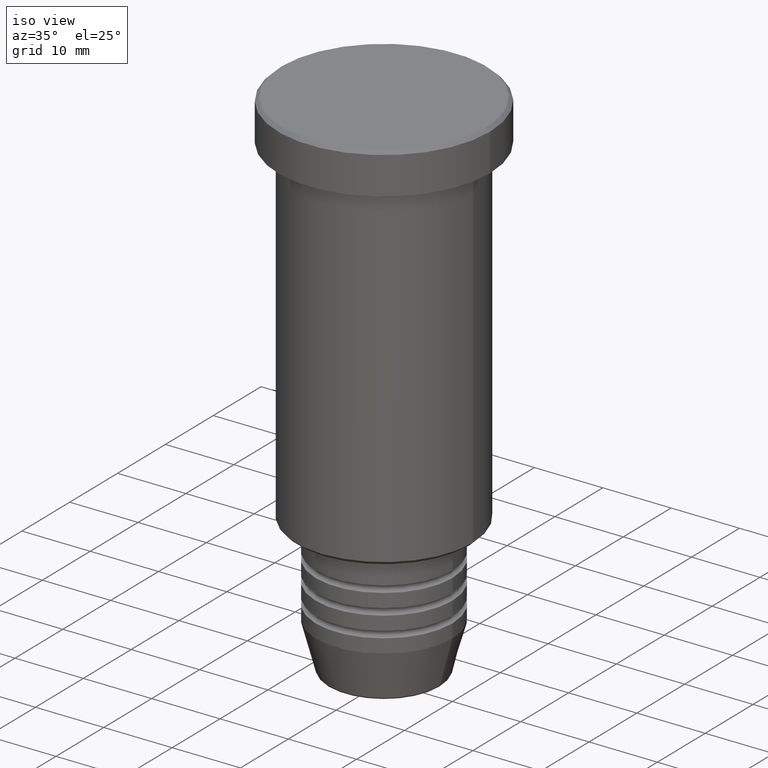
[diagram: clean part render]
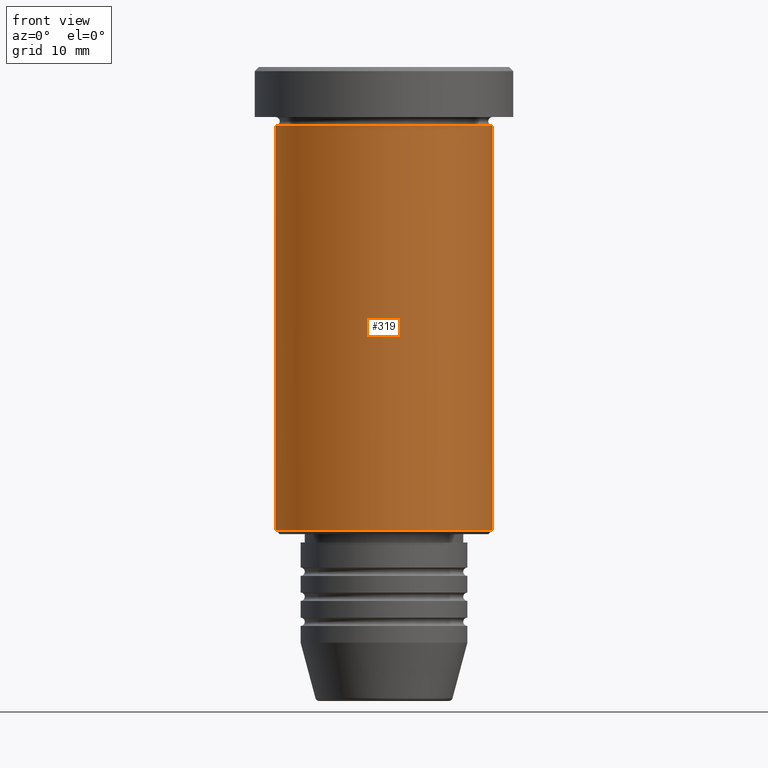
[diagram: tour spotlight — one face highlighted and labeled with its STEP entity id]
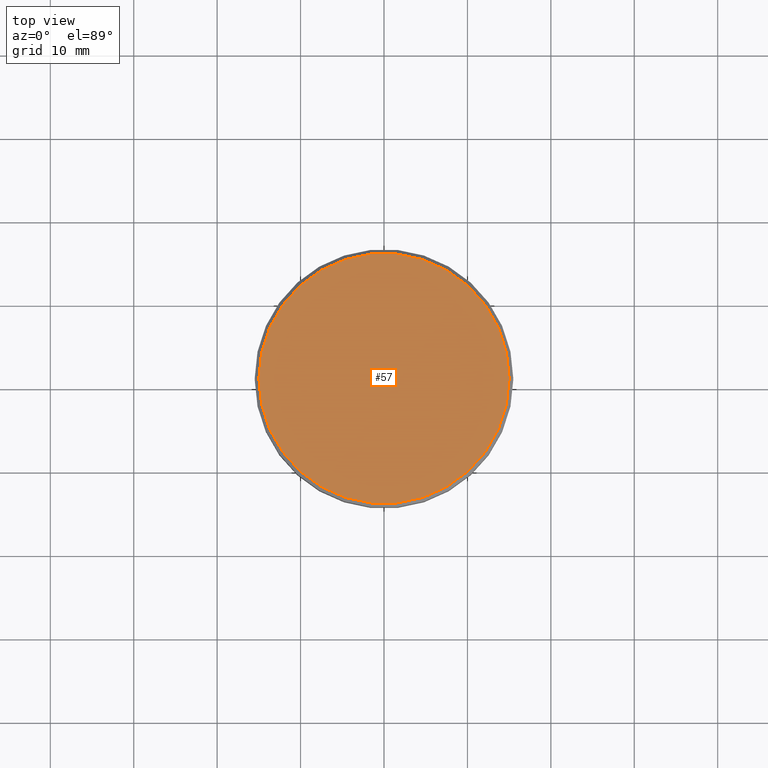
[diagram: tour spotlight — one face highlighted and labeled with its STEP entity id]
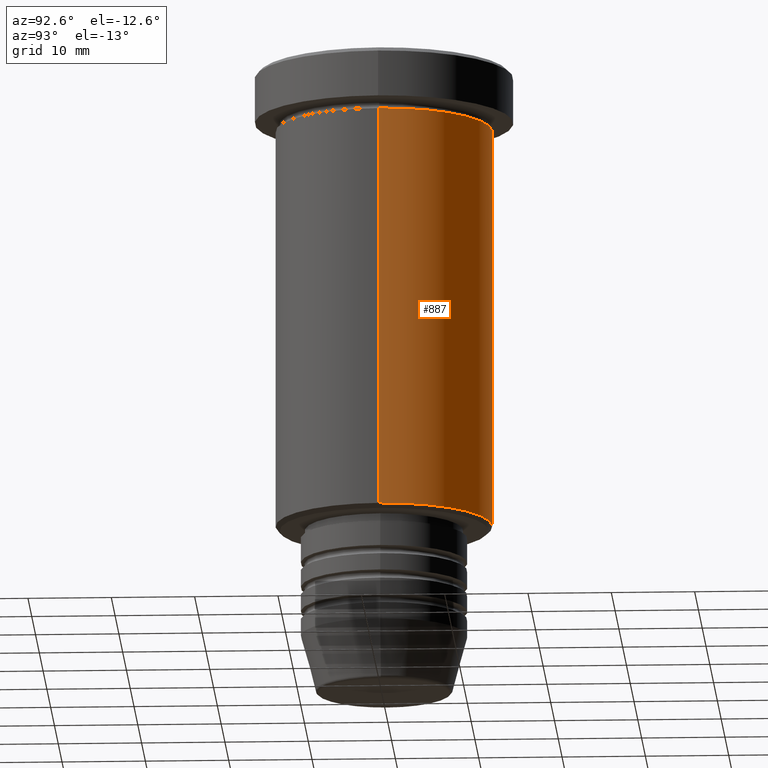
[diagram: tour spotlight — one face highlighted and labeled with its STEP entity id]
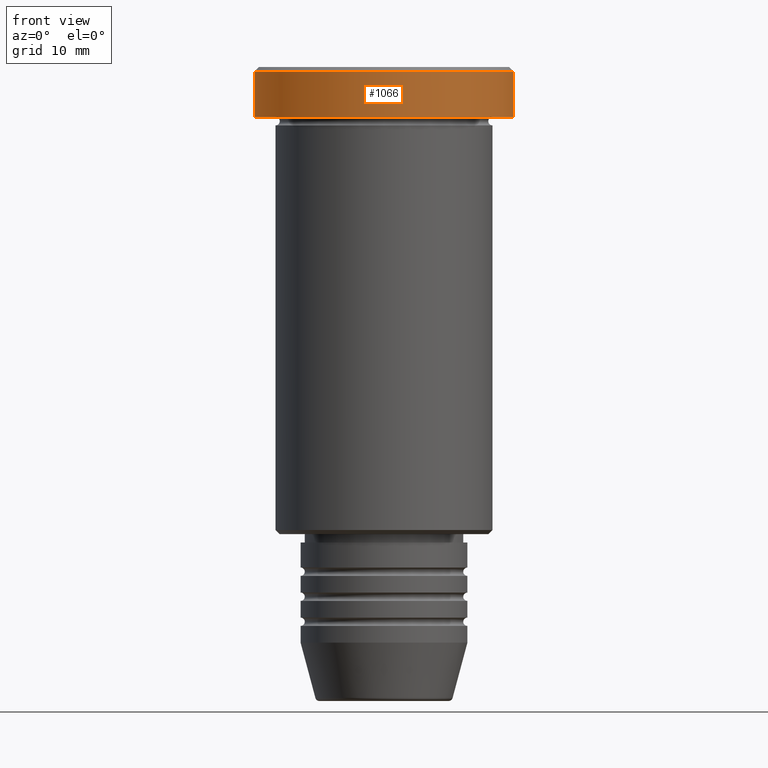
[diagram: tour spotlight — one face highlighted and labeled with its STEP entity id]
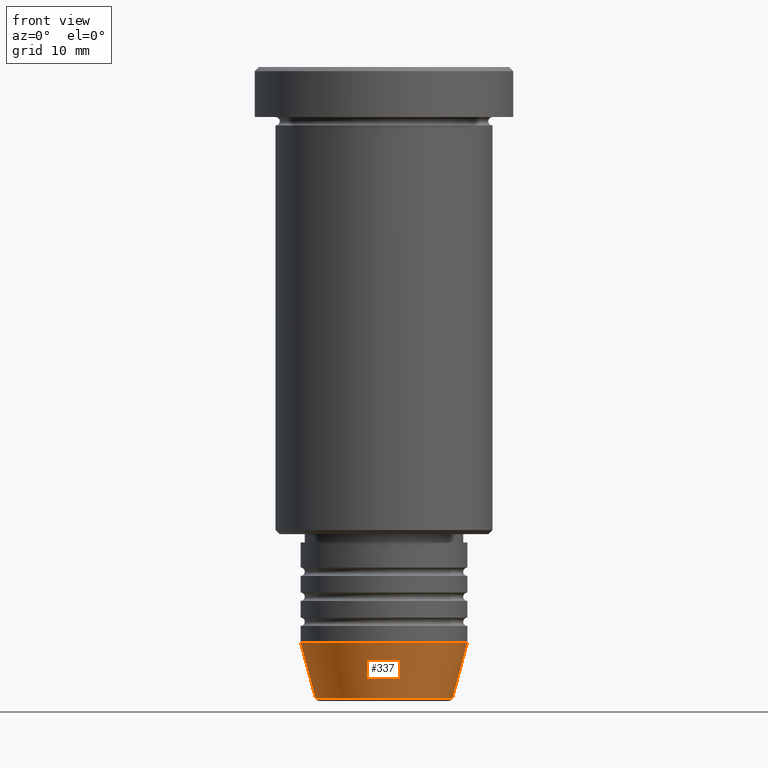
[diagram: tour spotlight — one face highlighted and labeled with its STEP entity id]
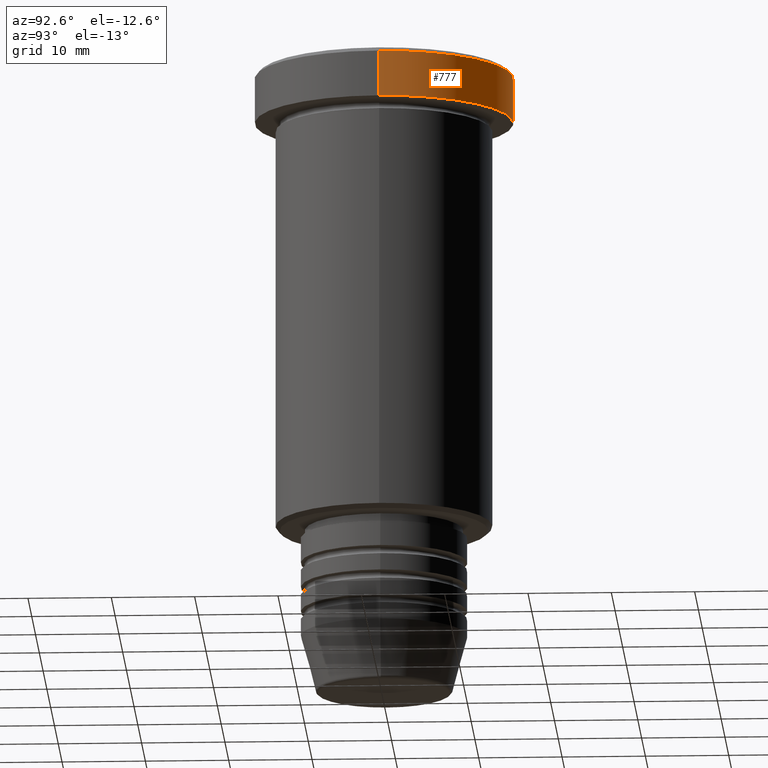
[diagram: tour spotlight — one face highlighted and labeled with its STEP entity id]
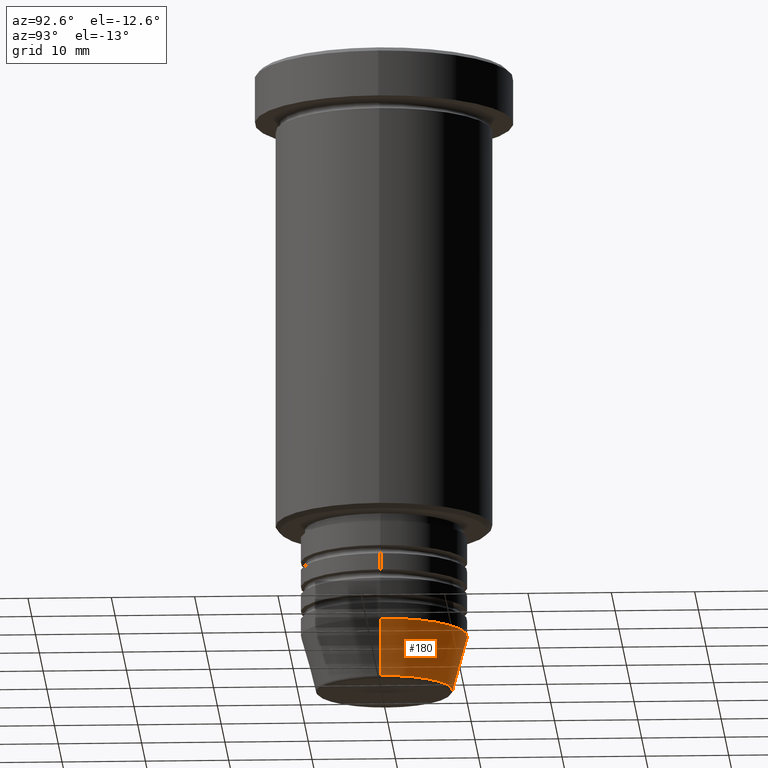
[diagram: tour spotlight — one face highlighted and labeled with its STEP entity id]
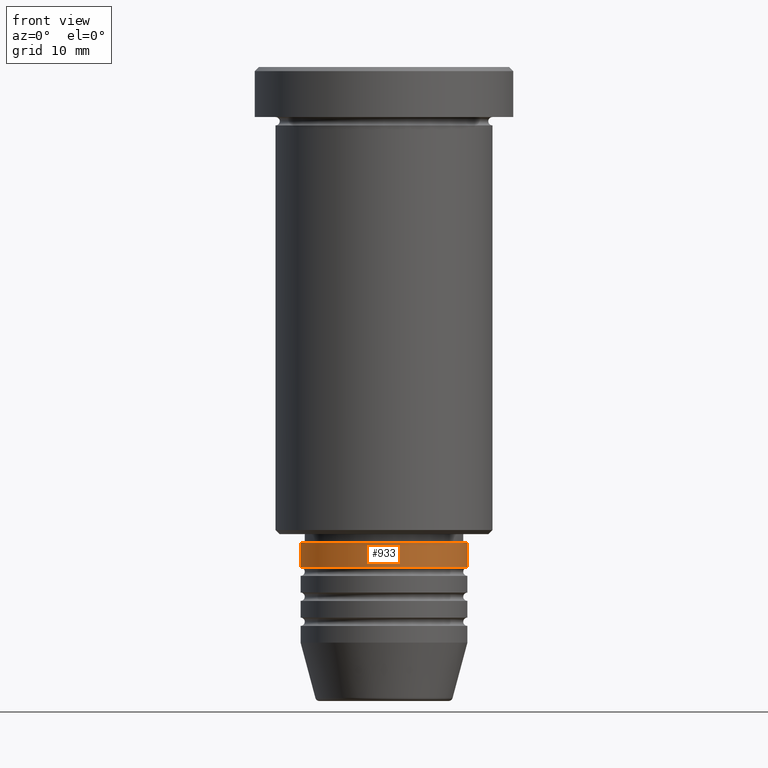
[diagram: tour spotlight — one face highlighted and labeled with its STEP entity id]
A machine part: a face-by-face anatomy tour. The part has 43 B-rep faces; the first image is the clean iso view, then the 8 largest visible faces are spotlighted one at a time (largest first), each with its STEP entity span.

Face 1 — front view, entity #319. In plain terms, the highlighted cylindrical surface (partial cylindrical patch) has radius 13 mm, axis along (-0, -0, 1).
Definition (entity closure, byte-faithful):
#21 = CIRCLE ( 'NONE', #497, 13.00000000000000000 ) ;
#34 = ORIENTED_EDGE ( 'NONE', *, *, #753, .T. ) ;
#105 = EDGE_CURVE ( 'NONE', #923, #739, #626, .T. ) ;
#112 = CARTESIAN_POINT ( 'NONE',  ( 13.00000000000000000, 0.000000000000000000, 0.000000000000000000 ) ) ;
#129 = AXIS2_PLACEMENT_3D ( 'NONE', #882, #1149, #515 ) ;
#185 = DIRECTION ( 'NONE',  ( -0.000000000000000000, -0.000000000000000000, 1.000000000000000000 ) ) ;
#230 = ORIENTED_EDGE ( 'NONE', *, *, #1004, .F. ) ;
#257 = ORIENTED_EDGE ( 'NONE', *, *, #1023, .F. ) ;
#319 = ADVANCED_FACE ( 'NONE', ( #944 ), #487, .T. ) ;
#398 = VECTOR ( 'NONE', #185, 1000.000000000000000 ) ;
#442 = VERTEX_POINT ( 'NONE', #1138 ) ;
#448 = CARTESIAN_POINT ( 'NONE',  ( 0.000000000000000000, 0.000000000000000000, -6.999999999999995559 ) ) ;
#476 = CARTESIAN_POINT ( 'NONE',  ( 0.000000000000000000, 0.000000000000000000, 0.000000000000000000 ) ) ;
#487 = CYLINDRICAL_SURFACE ( 'NONE', #897, 13.00000000000000000 ) ;
#497 = AXIS2_PLACEMENT_3D ( 'NONE', #448, #538, #518 ) ;
#515 = DIRECTION ( 'NONE',  ( -1.000000000000000000, 0.000000000000000000, 0.000000000000000000 ) ) ;
#518 = DIRECTION ( 'NONE',  ( 1.000000000000000000, 0.000000000000000000, 0.000000000000000000 ) ) ;
#538 = DIRECTION ( 'NONE',  ( -0.000000000000000000, -0.000000000000000000, 1.000000000000000000 ) ) ;
#626 = CIRCLE ( 'NONE', #129, 13.00000000000000000 ) ;
#658 = CARTESIAN_POINT ( 'NONE',  ( 13.00000000000000000, 0.000000000000000000, -55.50000000000000711 ) ) ;
#685 = CARTESIAN_POINT ( 'NONE',  ( -13.00000000000000000, 1.592040838891559095E-15, 0.000000000000000000 ) ) ;
#701 = EDGE_LOOP ( 'NONE', ( #230, #1092, #34, #257 ) ) ;
#739 = VERTEX_POINT ( 'NONE', #658 ) ;
#741 = LINE ( 'NONE', #112, #398 ) ;
#753 = EDGE_CURVE ( 'NONE', #739, #1106, #741, .T. ) ;
#837 = DIRECTION ( 'NONE',  ( 1.000000000000000000, 0.000000000000000000, 0.000000000000000000 ) ) ;
#878 = CARTESIAN_POINT ( 'NONE',  ( -13.00000000000000000, 1.592040838891559095E-15, -55.50000000000000711 ) ) ;
#882 = CARTESIAN_POINT ( 'NONE',  ( 0.000000000000000000, 0.000000000000000000, -55.50000000000000711 ) ) ;
#897 = AXIS2_PLACEMENT_3D ( 'NONE', #476, #1021, #837 ) ;
#923 = VERTEX_POINT ( 'NONE', #878 ) ;
#944 = FACE_OUTER_BOUND ( 'NONE', #701, .T. ) ;
#981 = CARTESIAN_POINT ( 'NONE',  ( 13.00000000000000000, 0.000000000000000000, -6.999999999999995559 ) ) ;
#1004 = EDGE_CURVE ( 'NONE', #923, #442, #1137, .T. ) ;
#1021 = DIRECTION ( 'NONE',  ( -0.000000000000000000, -0.000000000000000000, 1.000000000000000000 ) ) ;
#1023 = EDGE_CURVE ( 'NONE', #442, #1106, #21, .T. ) ;
#1045 = VECTOR ( 'NONE', #1048, 1000.000000000000000 ) ;
#1048 = DIRECTION ( 'NONE',  ( -0.000000000000000000, -0.000000000000000000, 1.000000000000000000 ) ) ;
#1092 = ORIENTED_EDGE ( 'NONE', *, *, #105, .T. ) ;
#1106 = VERTEX_POINT ( 'NONE', #981 ) ;
#1137 = LINE ( 'NONE', #685, #1045 ) ;
#1138 = CARTESIAN_POINT ( 'NONE',  ( -13.00000000000000000, 1.592040838891559095E-15, -6.999999999999995559 ) ) ;
#1149 = DIRECTION ( 'NONE',  ( -0.000000000000000000, -0.000000000000000000, 1.000000000000000000 ) ) ;

Face 2 — top view, entity #57. In plain terms, the highlighted planar face has unit normal (0, -0, 1).
Definition (entity closure, byte-faithful):
#18 = AXIS2_PLACEMENT_3D ( 'NONE', #535, #1085, #455 ) ;
#57 = ADVANCED_FACE ( 'NONE', ( #160 ), #960, .T. ) ;
#61 = VERTEX_POINT ( 'NONE', #1136 ) ;
#107 = EDGE_LOOP ( 'NONE', ( #336, #1057 ) ) ;
#113 = AXIS2_PLACEMENT_3D ( 'NONE', #1148, #967, #769 ) ;
#160 = FACE_OUTER_BOUND ( 'NONE', #107, .T. ) ;
#220 = EDGE_CURVE ( 'NONE', #61, #609, #356, .T. ) ;
#336 = ORIENTED_EDGE ( 'NONE', *, *, #220, .T. ) ;
#356 = CIRCLE ( 'NONE', #18, 15.00000000000001421 ) ;
#455 = DIRECTION ( 'NONE',  ( 1.000000000000000000, 0.000000000000000000, 0.000000000000000000 ) ) ;
#483 = EDGE_CURVE ( 'NONE', #609, #61, #704, .T. ) ;
#521 = CARTESIAN_POINT ( 'NONE',  ( 0.000000000000000000, 0.000000000000000000, 0.000000000000000000 ) ) ;
#535 = CARTESIAN_POINT ( 'NONE',  ( 0.000000000000000000, 0.000000000000000000, 0.000000000000000000 ) ) ;
#609 = VERTEX_POINT ( 'NONE', #705 ) ;
#704 = CIRCLE ( 'NONE', #113, 15.00000000000001421 ) ;
#705 = CARTESIAN_POINT ( 'NONE',  ( 15.00000000000001421, 1.867586368699714559E-15, 0.000000000000000000 ) ) ;
#769 = DIRECTION ( 'NONE',  ( 1.000000000000000000, 0.000000000000000000, 0.000000000000000000 ) ) ;
#770 = DIRECTION ( 'NONE',  ( 0.000000000000000000, -0.000000000000000000, 1.000000000000000000 ) ) ;
#960 = PLANE ( 'NONE',  #1061 ) ;
#967 = DIRECTION ( 'NONE',  ( -0.000000000000000000, -0.000000000000000000, 1.000000000000000000 ) ) ;
#1052 = DIRECTION ( 'NONE',  ( 1.000000000000000000, 0.000000000000000000, 0.000000000000000000 ) ) ;
#1057 = ORIENTED_EDGE ( 'NONE', *, *, #483, .T. ) ;
#1061 = AXIS2_PLACEMENT_3D ( 'NONE', #521, #770, #1052 ) ;
#1085 = DIRECTION ( 'NONE',  ( -0.000000000000000000, -0.000000000000000000, 1.000000000000000000 ) ) ;
#1136 = CARTESIAN_POINT ( 'NONE',  ( -15.00000000000001421, 0.000000000000000000, 0.000000000000000000 ) ) ;
#1148 = CARTESIAN_POINT ( 'NONE',  ( 0.000000000000000000, 0.000000000000000000, 0.000000000000000000 ) ) ;

Face 3 — auxiliary view, entity #887. In plain terms, the highlighted cylindrical surface (partial cylindrical patch) has radius 13 mm, axis along (-0, -0, 1).
Definition (entity closure, byte-faithful):
#35 = AXIS2_PLACEMENT_3D ( 'NONE', #936, #482, #95 ) ;
#95 = DIRECTION ( 'NONE',  ( 1.000000000000000000, 0.000000000000000000, 0.000000000000000000 ) ) ;
#112 = CARTESIAN_POINT ( 'NONE',  ( 13.00000000000000000, 0.000000000000000000, 0.000000000000000000 ) ) ;
#144 = EDGE_CURVE ( 'NONE', #739, #923, #223, .T. ) ;
#158 = ORIENTED_EDGE ( 'NONE', *, *, #352, .F. ) ;
#164 = DIRECTION ( 'NONE',  ( -0.000000000000000000, -0.000000000000000000, 1.000000000000000000 ) ) ;
#169 = CARTESIAN_POINT ( 'NONE',  ( 0.000000000000000000, 0.000000000000000000, -55.50000000000000711 ) ) ;
#185 = DIRECTION ( 'NONE',  ( -0.000000000000000000, -0.000000000000000000, 1.000000000000000000 ) ) ;
#223 = CIRCLE ( 'NONE', #935, 13.00000000000000000 ) ;
#238 = CARTESIAN_POINT ( 'NONE',  ( 0.000000000000000000, 0.000000000000000000, 0.000000000000000000 ) ) ;
#273 = EDGE_LOOP ( 'NONE', ( #539, #1018, #158, #392 ) ) ;
#352 = EDGE_CURVE ( 'NONE', #1106, #442, #838, .T. ) ;
#392 = ORIENTED_EDGE ( 'NONE', *, *, #753, .F. ) ;
#398 = VECTOR ( 'NONE', #185, 1000.000000000000000 ) ;
#399 = DIRECTION ( 'NONE',  ( 1.000000000000000000, 0.000000000000000000, 0.000000000000000000 ) ) ;
#442 = VERTEX_POINT ( 'NONE', #1138 ) ;
#482 = DIRECTION ( 'NONE',  ( -0.000000000000000000, -0.000000000000000000, 1.000000000000000000 ) ) ;
#539 = ORIENTED_EDGE ( 'NONE', *, *, #144, .T. ) ;
#579 = CYLINDRICAL_SURFACE ( 'NONE', #591, 13.00000000000000000 ) ;
#591 = AXIS2_PLACEMENT_3D ( 'NONE', #238, #691, #399 ) ;
#658 = CARTESIAN_POINT ( 'NONE',  ( 13.00000000000000000, 0.000000000000000000, -55.50000000000000711 ) ) ;
#685 = CARTESIAN_POINT ( 'NONE',  ( -13.00000000000000000, 1.592040838891559095E-15, 0.000000000000000000 ) ) ;
#691 = DIRECTION ( 'NONE',  ( -0.000000000000000000, -0.000000000000000000, 1.000000000000000000 ) ) ;
#739 = VERTEX_POINT ( 'NONE', #658 ) ;
#741 = LINE ( 'NONE', #112, #398 ) ;
#753 = EDGE_CURVE ( 'NONE', #739, #1106, #741, .T. ) ;
#772 = FACE_OUTER_BOUND ( 'NONE', #273, .T. ) ;
#838 = CIRCLE ( 'NONE', #35, 13.00000000000000000 ) ;
#878 = CARTESIAN_POINT ( 'NONE',  ( -13.00000000000000000, 1.592040838891559095E-15, -55.50000000000000711 ) ) ;
#887 = ADVANCED_FACE ( 'NONE', ( #772 ), #579, .T. ) ;
#914 = DIRECTION ( 'NONE',  ( -1.000000000000000000, 0.000000000000000000, 0.000000000000000000 ) ) ;
#923 = VERTEX_POINT ( 'NONE', #878 ) ;
#935 = AXIS2_PLACEMENT_3D ( 'NONE', #169, #164, #914 ) ;
#936 = CARTESIAN_POINT ( 'NONE',  ( 0.000000000000000000, 0.000000000000000000, -6.999999999999995559 ) ) ;
#981 = CARTESIAN_POINT ( 'NONE',  ( 13.00000000000000000, 0.000000000000000000, -6.999999999999995559 ) ) ;
#1004 = EDGE_CURVE ( 'NONE', #923, #442, #1137, .T. ) ;
#1018 = ORIENTED_EDGE ( 'NONE', *, *, #1004, .T. ) ;
#1045 = VECTOR ( 'NONE', #1048, 1000.000000000000000 ) ;
#1048 = DIRECTION ( 'NONE',  ( -0.000000000000000000, -0.000000000000000000, 1.000000000000000000 ) ) ;
#1106 = VERTEX_POINT ( 'NONE', #981 ) ;
#1137 = LINE ( 'NONE', #685, #1045 ) ;
#1138 = CARTESIAN_POINT ( 'NONE',  ( -13.00000000000000000, 1.592040838891559095E-15, -6.999999999999995559 ) ) ;

Face 4 — front view, entity #1066. In plain terms, the highlighted cylindrical surface (partial cylindrical patch) has radius 15.5 mm, axis along (-0, -0, 1).
Definition (entity closure, byte-faithful):
#7 = EDGE_CURVE ( 'NONE', #547, #561, #678, .T. ) ;
#22 = VECTOR ( 'NONE', #408, 1000.000000000000000 ) ;
#32 = ORIENTED_EDGE ( 'NONE', *, *, #730, .T. ) ;
#55 = VECTOR ( 'NONE', #773, 1000.000000000000000 ) ;
#87 = CARTESIAN_POINT ( 'NONE',  ( -15.50000000000000000, 1.898202538678397557E-15, -0.4999999999999987232 ) ) ;
#127 = ORIENTED_EDGE ( 'NONE', *, *, #400, .T. ) ;
#143 = CARTESIAN_POINT ( 'NONE',  ( 0.000000000000000000, 0.000000000000000000, -0.4999999999999987232 ) ) ;
#194 = DIRECTION ( 'NONE',  ( 1.000000000000000000, 0.000000000000000000, 0.000000000000000000 ) ) ;
#331 = DIRECTION ( 'NONE',  ( 1.000000000000000000, 0.000000000000000000, 0.000000000000000000 ) ) ;
#348 = ORIENTED_EDGE ( 'NONE', *, *, #1012, .T. ) ;
#387 = CARTESIAN_POINT ( 'NONE',  ( 0.000000000000000000, 0.000000000000000000, -5.999999999999995559 ) ) ;
#400 = EDGE_CURVE ( 'NONE', #682, #451, #1056, .T. ) ;
#408 = DIRECTION ( 'NONE',  ( -0.000000000000000000, -0.000000000000000000, 1.000000000000000000 ) ) ;
#424 = CARTESIAN_POINT ( 'NONE',  ( 15.50000000000000000, 0.000000000000000000, -0.4999999999999987232 ) ) ;
#436 = CARTESIAN_POINT ( 'NONE',  ( 15.50000000000000000, 0.000000000000000000, -5.999999999999995559 ) ) ;
#451 = VERTEX_POINT ( 'NONE', #424 ) ;
#523 = FACE_OUTER_BOUND ( 'NONE', #886, .T. ) ;
#547 = VERTEX_POINT ( 'NONE', #901 ) ;
#550 = DIRECTION ( 'NONE',  ( -0.000000000000000000, -0.000000000000000000, 1.000000000000000000 ) ) ;
#561 = VERTEX_POINT ( 'NONE', #87 ) ;
#604 = CARTESIAN_POINT ( 'NONE',  ( -15.50000000000000000, 1.898202538678397557E-15, 0.000000000000000000 ) ) ;
#621 = CARTESIAN_POINT ( 'NONE',  ( 0.000000000000000000, 0.000000000000000000, 0.000000000000000000 ) ) ;
#678 = LINE ( 'NONE', #604, #22 ) ;
#682 = VERTEX_POINT ( 'NONE', #436 ) ;
#686 = CIRCLE ( 'NONE', #725, 15.50000000000000000 ) ;
#698 = DIRECTION ( 'NONE',  ( -0.000000000000000000, -0.000000000000000000, 1.000000000000000000 ) ) ;
#722 = AXIS2_PLACEMENT_3D ( 'NONE', #387, #550, #194 ) ;
#725 = AXIS2_PLACEMENT_3D ( 'NONE', #143, #870, #331 ) ;
#730 = EDGE_CURVE ( 'NONE', #547, #682, #1143, .T. ) ;
#773 = DIRECTION ( 'NONE',  ( -0.000000000000000000, -0.000000000000000000, 1.000000000000000000 ) ) ;
#781 = AXIS2_PLACEMENT_3D ( 'NONE', #621, #698, #1080 ) ;
#806 = CYLINDRICAL_SURFACE ( 'NONE', #781, 15.50000000000000000 ) ;
#870 = DIRECTION ( 'NONE',  ( 0.000000000000000000, 0.000000000000000000, -1.000000000000000000 ) ) ;
#886 = EDGE_LOOP ( 'NONE', ( #1037, #32, #127, #348 ) ) ;
#901 = CARTESIAN_POINT ( 'NONE',  ( -15.50000000000000000, 1.898202538678397557E-15, -5.999999999999995559 ) ) ;
#1012 = EDGE_CURVE ( 'NONE', #451, #561, #686, .T. ) ;
#1037 = ORIENTED_EDGE ( 'NONE', *, *, #7, .F. ) ;
#1056 = LINE ( 'NONE', #1152, #55 ) ;
#1066 = ADVANCED_FACE ( 'NONE', ( #523 ), #806, .T. ) ;
#1080 = DIRECTION ( 'NONE',  ( 1.000000000000000000, 0.000000000000000000, 0.000000000000000000 ) ) ;
#1143 = CIRCLE ( 'NONE', #722, 15.50000000000000000 ) ;
#1152 = CARTESIAN_POINT ( 'NONE',  ( 15.50000000000000000, 0.000000000000000000, 0.000000000000000000 ) ) ;

Face 5 — front view, entity #337. In plain terms, the highlighted conical surface has half-angle 15 deg.
Definition (entity closure, byte-faithful):
#23 = DIRECTION ( 'NONE',  ( -0.000000000000000000, -0.000000000000000000, 1.000000000000000000 ) ) ;
#73 = CARTESIAN_POINT ( 'NONE',  ( 0.000000000000000000, 0.000000000000000000, -69.00000000000000000 ) ) ;
#116 = VERTEX_POINT ( 'NONE', #181 ) ;
#124 = DIRECTION ( 'NONE',  ( -0.000000000000000000, -0.000000000000000000, 1.000000000000000000 ) ) ;
#132 = DIRECTION ( 'NONE',  ( 0.2588190451025213501, 0.000000000000000000, 0.9659258262890680902 ) ) ;
#145 = CARTESIAN_POINT ( 'NONE',  ( 8.223655072137187716, 0.000000000000000000, -75.62940952255127058 ) ) ;
#162 = CARTESIAN_POINT ( 'NONE',  ( -10.00000000000000000, 1.224646799147353256E-15, -69.00000000000000000 ) ) ;
#171 = CONICAL_SURFACE ( 'NONE', #552, 10.00000000000000000, 0.2617993877991500740 ) ;
#181 = CARTESIAN_POINT ( 'NONE',  ( 10.00000000000000000, 0.000000000000000000, -69.00000000000000000 ) ) ;
#205 = DIRECTION ( 'NONE',  ( 1.000000000000000000, 0.000000000000000000, 0.000000000000000000 ) ) ;
#209 = AXIS2_PLACEMENT_3D ( 'NONE', #221, #124, #491 ) ;
#210 = CARTESIAN_POINT ( 'NONE',  ( -10.00000000000000000, 1.224646799147353256E-15, -69.00000000000000000 ) ) ;
#221 = CARTESIAN_POINT ( 'NONE',  ( 0.000000000000000000, 0.000000000000000000, -75.62940952255127058 ) ) ;
#267 = AXIS2_PLACEMENT_3D ( 'NONE', #73, #1090, #794 ) ;
#337 = ADVANCED_FACE ( 'NONE', ( #850 ), #171, .T. ) ;
#346 = CARTESIAN_POINT ( 'NONE',  ( -8.223655072137187716, 1.115877042642911856E-15, -75.62940952255127058 ) ) ;
#393 = CARTESIAN_POINT ( 'NONE',  ( 0.000000000000000000, 0.000000000000000000, -69.00000000000000000 ) ) ;
#397 = VECTOR ( 'NONE', #132, 1000.000000000000000 ) ;
#407 = EDGE_CURVE ( 'NONE', #528, #116, #854, .T. ) ;
#415 = ORIENTED_EDGE ( 'NONE', *, *, #601, .F. ) ;
#421 = ORIENTED_EDGE ( 'NONE', *, *, #407, .T. ) ;
#491 = DIRECTION ( 'NONE',  ( 1.000000000000000000, 0.000000000000000000, 0.000000000000000000 ) ) ;
#509 = EDGE_CURVE ( 'NONE', #599, #528, #1181, .T. ) ;
#528 = VERTEX_POINT ( 'NONE', #145 ) ;
#552 = AXIS2_PLACEMENT_3D ( 'NONE', #393, #23, #205 ) ;
#565 = EDGE_LOOP ( 'NONE', ( #890, #1093, #421, #415 ) ) ;
#599 = VERTEX_POINT ( 'NONE', #346 ) ;
#601 = EDGE_CURVE ( 'NONE', #1049, #116, #938, .T. ) ;
#661 = LINE ( 'NONE', #210, #971 ) ;
#694 = CARTESIAN_POINT ( 'NONE',  ( 10.00000000000000000, 0.000000000000000000, -69.00000000000000000 ) ) ;
#794 = DIRECTION ( 'NONE',  ( 1.000000000000000000, 0.000000000000000000, 0.000000000000000000 ) ) ;
#828 = EDGE_CURVE ( 'NONE', #599, #1049, #661, .T. ) ;
#829 = DIRECTION ( 'NONE',  ( -0.2588190451025213501, 3.169619151431772337E-17, 0.9659258262890680902 ) ) ;
#850 = FACE_OUTER_BOUND ( 'NONE', #565, .T. ) ;
#854 = LINE ( 'NONE', #694, #397 ) ;
#890 = ORIENTED_EDGE ( 'NONE', *, *, #828, .F. ) ;
#938 = CIRCLE ( 'NONE', #267, 10.00000000000000000 ) ;
#971 = VECTOR ( 'NONE', #829, 1000.000000000000000 ) ;
#1049 = VERTEX_POINT ( 'NONE', #162 ) ;
#1090 = DIRECTION ( 'NONE',  ( -0.000000000000000000, -0.000000000000000000, 1.000000000000000000 ) ) ;
#1093 = ORIENTED_EDGE ( 'NONE', *, *, #509, .T. ) ;
#1181 = CIRCLE ( 'NONE', #209, 8.223655072137187716 ) ;

Face 6 — auxiliary view, entity #777. In plain terms, the highlighted cylindrical surface (partial cylindrical patch) has radius 15.5 mm, axis along (-0, -0, 1).
Definition (entity closure, byte-faithful):
#7 = EDGE_CURVE ( 'NONE', #547, #561, #678, .T. ) ;
#8 = DIRECTION ( 'NONE',  ( 1.000000000000000000, 0.000000000000000000, 0.000000000000000000 ) ) ;
#22 = VECTOR ( 'NONE', #408, 1000.000000000000000 ) ;
#50 = DIRECTION ( 'NONE',  ( -0.000000000000000000, -0.000000000000000000, 1.000000000000000000 ) ) ;
#55 = VECTOR ( 'NONE', #773, 1000.000000000000000 ) ;
#87 = CARTESIAN_POINT ( 'NONE',  ( -15.50000000000000000, 1.898202538678397557E-15, -0.4999999999999987232 ) ) ;
#98 = ORIENTED_EDGE ( 'NONE', *, *, #426, .T. ) ;
#139 = DIRECTION ( 'NONE',  ( 1.000000000000000000, 0.000000000000000000, 0.000000000000000000 ) ) ;
#211 = AXIS2_PLACEMENT_3D ( 'NONE', #913, #721, #801 ) ;
#289 = AXIS2_PLACEMENT_3D ( 'NONE', #1036, #50, #139 ) ;
#357 = CIRCLE ( 'NONE', #211, 15.50000000000000000 ) ;
#400 = EDGE_CURVE ( 'NONE', #682, #451, #1056, .T. ) ;
#408 = DIRECTION ( 'NONE',  ( -0.000000000000000000, -0.000000000000000000, 1.000000000000000000 ) ) ;
#424 = CARTESIAN_POINT ( 'NONE',  ( 15.50000000000000000, 0.000000000000000000, -0.4999999999999987232 ) ) ;
#426 = EDGE_CURVE ( 'NONE', #682, #547, #1058, .T. ) ;
#436 = CARTESIAN_POINT ( 'NONE',  ( 15.50000000000000000, 0.000000000000000000, -5.999999999999995559 ) ) ;
#451 = VERTEX_POINT ( 'NONE', #424 ) ;
#547 = VERTEX_POINT ( 'NONE', #901 ) ;
#561 = VERTEX_POINT ( 'NONE', #87 ) ;
#575 = FACE_OUTER_BOUND ( 'NONE', #761, .T. ) ;
#589 = AXIS2_PLACEMENT_3D ( 'NONE', #824, #737, #8 ) ;
#604 = CARTESIAN_POINT ( 'NONE',  ( -15.50000000000000000, 1.898202538678397557E-15, 0.000000000000000000 ) ) ;
#678 = LINE ( 'NONE', #604, #22 ) ;
#682 = VERTEX_POINT ( 'NONE', #436 ) ;
#690 = EDGE_CURVE ( 'NONE', #561, #451, #357, .T. ) ;
#721 = DIRECTION ( 'NONE',  ( 0.000000000000000000, 0.000000000000000000, -1.000000000000000000 ) ) ;
#734 = ORIENTED_EDGE ( 'NONE', *, *, #400, .F. ) ;
#737 = DIRECTION ( 'NONE',  ( -0.000000000000000000, -0.000000000000000000, 1.000000000000000000 ) ) ;
#761 = EDGE_LOOP ( 'NONE', ( #98, #786, #931, #734 ) ) ;
#773 = DIRECTION ( 'NONE',  ( -0.000000000000000000, -0.000000000000000000, 1.000000000000000000 ) ) ;
#777 = ADVANCED_FACE ( 'NONE', ( #575 ), #929, .T. ) ;
#786 = ORIENTED_EDGE ( 'NONE', *, *, #7, .T. ) ;
#801 = DIRECTION ( 'NONE',  ( 1.000000000000000000, 0.000000000000000000, 0.000000000000000000 ) ) ;
#824 = CARTESIAN_POINT ( 'NONE',  ( 0.000000000000000000, 0.000000000000000000, 0.000000000000000000 ) ) ;
#901 = CARTESIAN_POINT ( 'NONE',  ( -15.50000000000000000, 1.898202538678397557E-15, -5.999999999999995559 ) ) ;
#913 = CARTESIAN_POINT ( 'NONE',  ( 0.000000000000000000, 0.000000000000000000, -0.4999999999999987232 ) ) ;
#929 = CYLINDRICAL_SURFACE ( 'NONE', #589, 15.50000000000000000 ) ;
#931 = ORIENTED_EDGE ( 'NONE', *, *, #690, .T. ) ;
#1036 = CARTESIAN_POINT ( 'NONE',  ( 0.000000000000000000, 0.000000000000000000, -5.999999999999995559 ) ) ;
#1056 = LINE ( 'NONE', #1152, #55 ) ;
#1058 = CIRCLE ( 'NONE', #289, 15.50000000000000000 ) ;
#1152 = CARTESIAN_POINT ( 'NONE',  ( 15.50000000000000000, 0.000000000000000000, 0.000000000000000000 ) ) ;

Face 7 — auxiliary view, entity #180. In plain terms, the highlighted conical surface has half-angle 15 deg.
Definition (entity closure, byte-faithful):
#17 = AXIS2_PLACEMENT_3D ( 'NONE', #438, #1091, #980 ) ;
#31 = CARTESIAN_POINT ( 'NONE',  ( 0.000000000000000000, 0.000000000000000000, -69.00000000000000000 ) ) ;
#111 = CONICAL_SURFACE ( 'NONE', #1141, 10.00000000000000000, 0.2617993877991500740 ) ;
#116 = VERTEX_POINT ( 'NONE', #181 ) ;
#132 = DIRECTION ( 'NONE',  ( 0.2588190451025213501, 0.000000000000000000, 0.9659258262890680902 ) ) ;
#145 = CARTESIAN_POINT ( 'NONE',  ( 8.223655072137187716, 0.000000000000000000, -75.62940952255127058 ) ) ;
#157 = EDGE_CURVE ( 'NONE', #528, #599, #836, .T. ) ;
#162 = CARTESIAN_POINT ( 'NONE',  ( -10.00000000000000000, 1.224646799147353256E-15, -69.00000000000000000 ) ) ;
#180 = ADVANCED_FACE ( 'NONE', ( #1174 ), #111, .T. ) ;
#181 = CARTESIAN_POINT ( 'NONE',  ( 10.00000000000000000, 0.000000000000000000, -69.00000000000000000 ) ) ;
#210 = CARTESIAN_POINT ( 'NONE',  ( -10.00000000000000000, 1.224646799147353256E-15, -69.00000000000000000 ) ) ;
#277 = ORIENTED_EDGE ( 'NONE', *, *, #307, .F. ) ;
#284 = DIRECTION ( 'NONE',  ( -0.000000000000000000, -0.000000000000000000, 1.000000000000000000 ) ) ;
#307 = EDGE_CURVE ( 'NONE', #116, #1049, #937, .T. ) ;
#346 = CARTESIAN_POINT ( 'NONE',  ( -8.223655072137187716, 1.115877042642911856E-15, -75.62940952255127058 ) ) ;
#347 = DIRECTION ( 'NONE',  ( 1.000000000000000000, 0.000000000000000000, 0.000000000000000000 ) ) ;
#371 = ORIENTED_EDGE ( 'NONE', *, *, #828, .T. ) ;
#386 = ORIENTED_EDGE ( 'NONE', *, *, #157, .T. ) ;
#397 = VECTOR ( 'NONE', #132, 1000.000000000000000 ) ;
#407 = EDGE_CURVE ( 'NONE', #528, #116, #854, .T. ) ;
#428 = ORIENTED_EDGE ( 'NONE', *, *, #407, .F. ) ;
#438 = CARTESIAN_POINT ( 'NONE',  ( 0.000000000000000000, 0.000000000000000000, -75.62940952255127058 ) ) ;
#528 = VERTEX_POINT ( 'NONE', #145 ) ;
#599 = VERTEX_POINT ( 'NONE', #346 ) ;
#606 = AXIS2_PLACEMENT_3D ( 'NONE', #31, #284, #659 ) ;
#631 = DIRECTION ( 'NONE',  ( -0.000000000000000000, -0.000000000000000000, 1.000000000000000000 ) ) ;
#659 = DIRECTION ( 'NONE',  ( 1.000000000000000000, 0.000000000000000000, 0.000000000000000000 ) ) ;
#661 = LINE ( 'NONE', #210, #971 ) ;
#672 = EDGE_LOOP ( 'NONE', ( #386, #371, #277, #428 ) ) ;
#694 = CARTESIAN_POINT ( 'NONE',  ( 10.00000000000000000, 0.000000000000000000, -69.00000000000000000 ) ) ;
#828 = EDGE_CURVE ( 'NONE', #599, #1049, #661, .T. ) ;
#829 = DIRECTION ( 'NONE',  ( -0.2588190451025213501, 3.169619151431772337E-17, 0.9659258262890680902 ) ) ;
#836 = CIRCLE ( 'NONE', #17, 8.223655072137187716 ) ;
#854 = LINE ( 'NONE', #694, #397 ) ;
#937 = CIRCLE ( 'NONE', #606, 10.00000000000000000 ) ;
#971 = VECTOR ( 'NONE', #829, 1000.000000000000000 ) ;
#980 = DIRECTION ( 'NONE',  ( 1.000000000000000000, 0.000000000000000000, 0.000000000000000000 ) ) ;
#1049 = VERTEX_POINT ( 'NONE', #162 ) ;
#1072 = CARTESIAN_POINT ( 'NONE',  ( 0.000000000000000000, 0.000000000000000000, -69.00000000000000000 ) ) ;
#1091 = DIRECTION ( 'NONE',  ( -0.000000000000000000, -0.000000000000000000, 1.000000000000000000 ) ) ;
#1141 = AXIS2_PLACEMENT_3D ( 'NONE', #1072, #631, #347 ) ;
#1174 = FACE_OUTER_BOUND ( 'NONE', #672, .T. ) ;

Face 8 — front view, entity #933. In plain terms, the highlighted cylindrical surface (partial cylindrical patch) has radius 10 mm, axis along (-0, -0, 1).
Definition (entity closure, byte-faithful):
#12 = CARTESIAN_POINT ( 'NONE',  ( 0.000000000000000000, 0.000000000000000000, -57.00000000000000711 ) ) ;
#20 = VECTOR ( 'NONE', #449, 1000.000000000000000 ) ;
#122 = VERTEX_POINT ( 'NONE', #820 ) ;
#163 = CARTESIAN_POINT ( 'NONE',  ( 10.00000000000000000, 0.000000000000000000, 0.000000000000000000 ) ) ;
#213 = EDGE_LOOP ( 'NONE', ( #858, #1150, #946, #605 ) ) ;
#219 = FACE_OUTER_BOUND ( 'NONE', #213, .T. ) ;
#224 = DIRECTION ( 'NONE',  ( 1.000000000000000000, 0.000000000000000000, 0.000000000000000000 ) ) ;
#226 = CARTESIAN_POINT ( 'NONE',  ( 0.000000000000000000, 0.000000000000000000, -59.99999999999998579 ) ) ;
#246 = CIRCLE ( 'NONE', #918, 10.00000000000000000 ) ;
#256 = CARTESIAN_POINT ( 'NONE',  ( -10.00000000000000000, 1.224646799147353256E-15, 0.000000000000000000 ) ) ;
#327 = DIRECTION ( 'NONE',  ( 1.000000000000000000, 0.000000000000000000, 0.000000000000000000 ) ) ;
#355 = LINE ( 'NONE', #256, #20 ) ;
#373 = DIRECTION ( 'NONE',  ( -0.000000000000000000, -0.000000000000000000, 1.000000000000000000 ) ) ;
#405 = EDGE_CURVE ( 'NONE', #593, #1156, #246, .T. ) ;
#411 = CARTESIAN_POINT ( 'NONE',  ( -10.00000000000000000, 1.224646799147353256E-15, -57.00000000000000711 ) ) ;
#449 = DIRECTION ( 'NONE',  ( -0.000000000000000000, -0.000000000000000000, 1.000000000000000000 ) ) ;
#454 = DIRECTION ( 'NONE',  ( -0.000000000000000000, -0.000000000000000000, 1.000000000000000000 ) ) ;
#475 = DIRECTION ( 'NONE',  ( 1.000000000000000000, 0.000000000000000000, 0.000000000000000000 ) ) ;
#502 = DIRECTION ( 'NONE',  ( -0.000000000000000000, -0.000000000000000000, 1.000000000000000000 ) ) ;
#585 = EDGE_CURVE ( 'NONE', #1156, #122, #1176, .T. ) ;
#593 = VERTEX_POINT ( 'NONE', #982 ) ;
#600 = DIRECTION ( 'NONE',  ( -0.000000000000000000, -0.000000000000000000, 1.000000000000000000 ) ) ;
#605 = ORIENTED_EDGE ( 'NONE', *, *, #835, .F. ) ;
#610 = VECTOR ( 'NONE', #454, 1000.000000000000000 ) ;
#677 = EDGE_CURVE ( 'NONE', #593, #1002, #355, .T. ) ;
#706 = AXIS2_PLACEMENT_3D ( 'NONE', #12, #373, #475 ) ;
#815 = CARTESIAN_POINT ( 'NONE',  ( 10.00000000000000000, 0.000000000000000000, -59.99999999999998579 ) ) ;
#820 = CARTESIAN_POINT ( 'NONE',  ( 10.00000000000000000, 0.000000000000000000, -57.00000000000000711 ) ) ;
#835 = EDGE_CURVE ( 'NONE', #1002, #122, #1183, .T. ) ;
#858 = ORIENTED_EDGE ( 'NONE', *, *, #677, .F. ) ;
#918 = AXIS2_PLACEMENT_3D ( 'NONE', #226, #502, #327 ) ;
#933 = ADVANCED_FACE ( 'NONE', ( #219 ), #947, .T. ) ;
#946 = ORIENTED_EDGE ( 'NONE', *, *, #585, .T. ) ;
#947 = CYLINDRICAL_SURFACE ( 'NONE', #956, 10.00000000000000000 ) ;
#956 = AXIS2_PLACEMENT_3D ( 'NONE', #962, #600, #224 ) ;
#962 = CARTESIAN_POINT ( 'NONE',  ( 0.000000000000000000, 0.000000000000000000, 0.000000000000000000 ) ) ;
#982 = CARTESIAN_POINT ( 'NONE',  ( -10.00000000000000000, 1.224646799147353256E-15, -59.99999999999998579 ) ) ;
#1002 = VERTEX_POINT ( 'NONE', #411 ) ;
#1150 = ORIENTED_EDGE ( 'NONE', *, *, #405, .T. ) ;
#1156 = VERTEX_POINT ( 'NONE', #815 ) ;
#1176 = LINE ( 'NONE', #163, #610 ) ;
#1183 = CIRCLE ( 'NONE', #706, 10.00000000000000000 ) ;